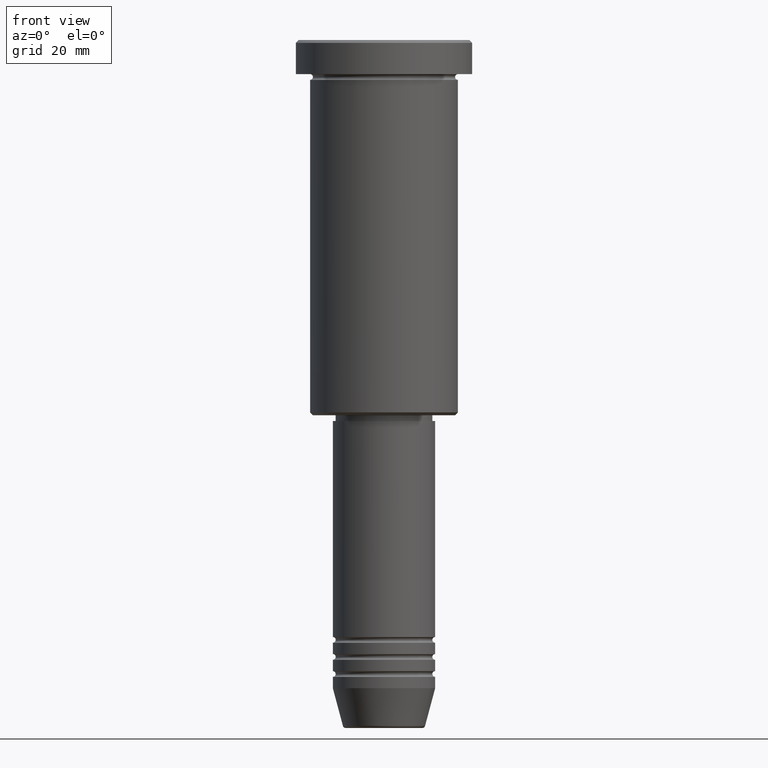
[diagram: clean part render]
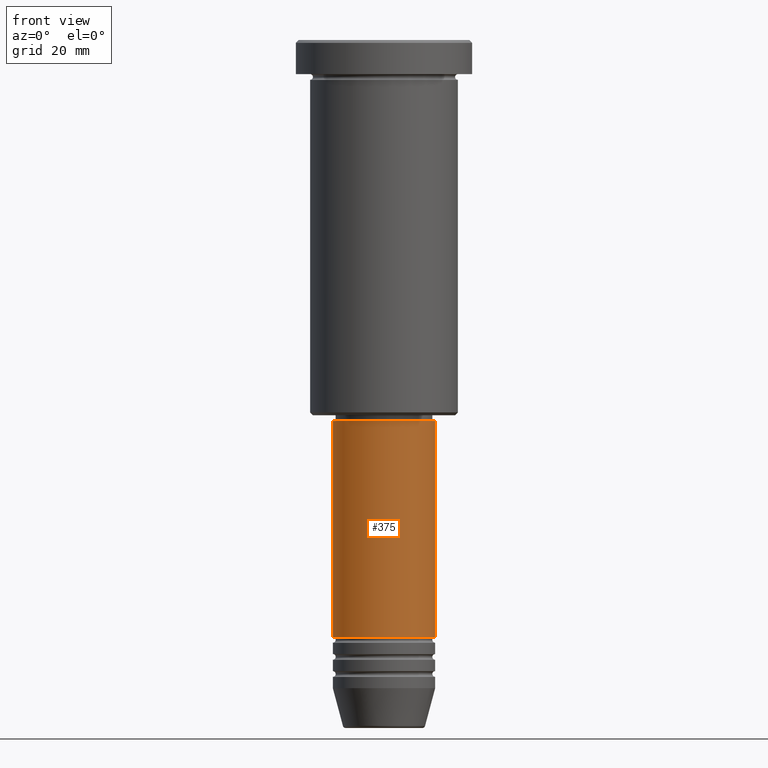
[diagram: same view with one face highlighted and labeled with its STEP entity id]
A machine part, front view. The second image highlights one B-rep face of the part: STEP entity #375.
In plain terms, the highlighted cylindrical surface (partial cylindrical patch) has radius 9 mm, axis along (-0, -0, 1).
Its self-contained STEP definition (entity closure, byte-faithful):
#60 = CARTESIAN_POINT ( 'NONE',  ( 0.000000000000000000, 0.000000000000000000, 0.000000000000000000 ) ) ;
#72 = DIRECTION ( 'NONE',  ( -0.000000000000000000, -0.000000000000000000, 1.000000000000000000 ) ) ;
#83 = ORIENTED_EDGE ( 'NONE', *, *, #291, .F. ) ;
#88 = VERTEX_POINT ( 'NONE', #425 ) ;
#112 = DIRECTION ( 'NONE',  ( -0.000000000000000000, -0.000000000000000000, 1.000000000000000000 ) ) ;
#159 = AXIS2_PLACEMENT_3D ( 'NONE', #60, #250, #707 ) ;
#163 = EDGE_CURVE ( 'NONE', #379, #366, #322, .T. ) ;
#176 = ORIENTED_EDGE ( 'NONE', *, *, #934, .T. ) ;
#223 = CARTESIAN_POINT ( 'NONE',  ( 9.000000000000000000, 0.000000000000000000, 0.000000000000000000 ) ) ;
#250 = DIRECTION ( 'NONE',  ( -0.000000000000000000, -0.000000000000000000, 1.000000000000000000 ) ) ;
#281 = DIRECTION ( 'NONE',  ( 1.000000000000000000, 0.000000000000000000, 0.000000000000000000 ) ) ;
#291 = EDGE_CURVE ( 'NONE', #88, #1166, #833, .T. ) ;
#292 = DIRECTION ( 'NONE',  ( -0.000000000000000000, -0.000000000000000000, 1.000000000000000000 ) ) ;
#322 = LINE ( 'NONE', #223, #1023 ) ;
#329 = EDGE_LOOP ( 'NONE', ( #83, #176, #449, #690 ) ) ;
#345 = CARTESIAN_POINT ( 'NONE',  ( 9.000000000000000000, 0.000000000000000000, -104.9999999999999858 ) ) ;
#366 = VERTEX_POINT ( 'NONE', #520 ) ;
#375 = ADVANCED_FACE ( 'NONE', ( #1068 ), #1165, .T. ) ;
#379 = VERTEX_POINT ( 'NONE', #345 ) ;
#417 = AXIS2_PLACEMENT_3D ( 'NONE', #557, #472, #1091 ) ;
#425 = CARTESIAN_POINT ( 'NONE',  ( -9.000000000000000000, 1.102182119232617714E-15, -104.9999999999999858 ) ) ;
#449 = ORIENTED_EDGE ( 'NONE', *, *, #163, .T. ) ;
#472 = DIRECTION ( 'NONE',  ( -0.000000000000000000, -0.000000000000000000, 1.000000000000000000 ) ) ;
#520 = CARTESIAN_POINT ( 'NONE',  ( 9.000000000000000000, 0.000000000000000000, -67.00000000000000000 ) ) ;
#557 = CARTESIAN_POINT ( 'NONE',  ( 0.000000000000000000, 0.000000000000000000, -104.9999999999999858 ) ) ;
#690 = ORIENTED_EDGE ( 'NONE', *, *, #1167, .F. ) ;
#707 = DIRECTION ( 'NONE',  ( 1.000000000000000000, 0.000000000000000000, 0.000000000000000000 ) ) ;
#770 = CARTESIAN_POINT ( 'NONE',  ( -9.000000000000000000, 1.102182119232617714E-15, 0.000000000000000000 ) ) ;
#788 = AXIS2_PLACEMENT_3D ( 'NONE', #1109, #112, #281 ) ;
#833 = LINE ( 'NONE', #770, #880 ) ;
#851 = CARTESIAN_POINT ( 'NONE',  ( -9.000000000000000000, 1.102182119232617714E-15, -67.00000000000000000 ) ) ;
#880 = VECTOR ( 'NONE', #292, 1000.000000000000000 ) ;
#923 = CIRCLE ( 'NONE', #417, 9.000000000000000000 ) ;
#934 = EDGE_CURVE ( 'NONE', #88, #379, #923, .T. ) ;
#1023 = VECTOR ( 'NONE', #72, 1000.000000000000000 ) ;
#1062 = CIRCLE ( 'NONE', #788, 9.000000000000000000 ) ;
#1068 = FACE_OUTER_BOUND ( 'NONE', #329, .T. ) ;
#1091 = DIRECTION ( 'NONE',  ( 1.000000000000000000, 0.000000000000000000, 0.000000000000000000 ) ) ;
#1109 = CARTESIAN_POINT ( 'NONE',  ( 0.000000000000000000, 0.000000000000000000, -67.00000000000000000 ) ) ;
#1165 = CYLINDRICAL_SURFACE ( 'NONE', #159, 9.000000000000000000 ) ;
#1166 = VERTEX_POINT ( 'NONE', #851 ) ;
#1167 = EDGE_CURVE ( 'NONE', #1166, #366, #1062, .T. ) ;